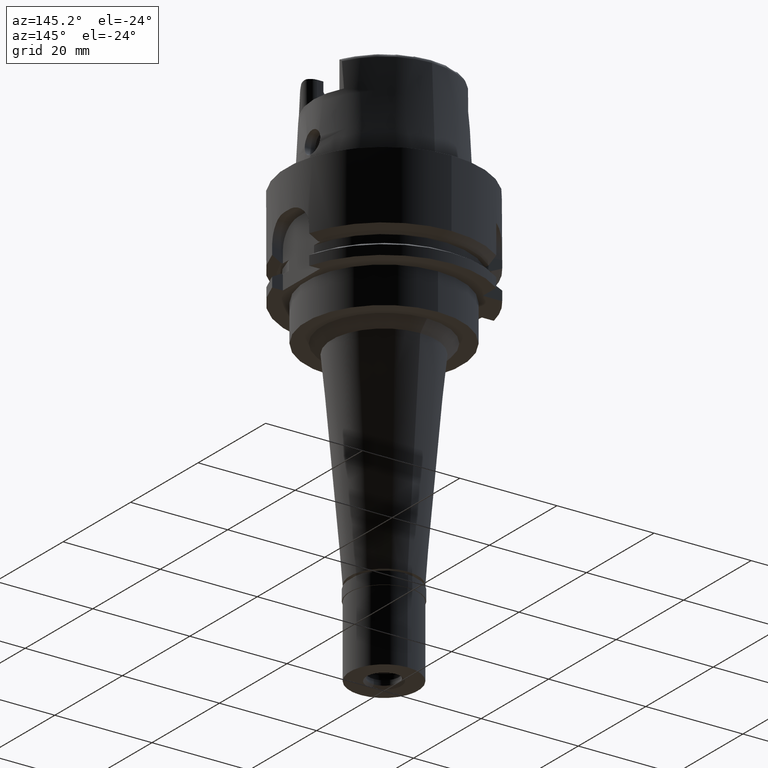
[diagram: clean part render]
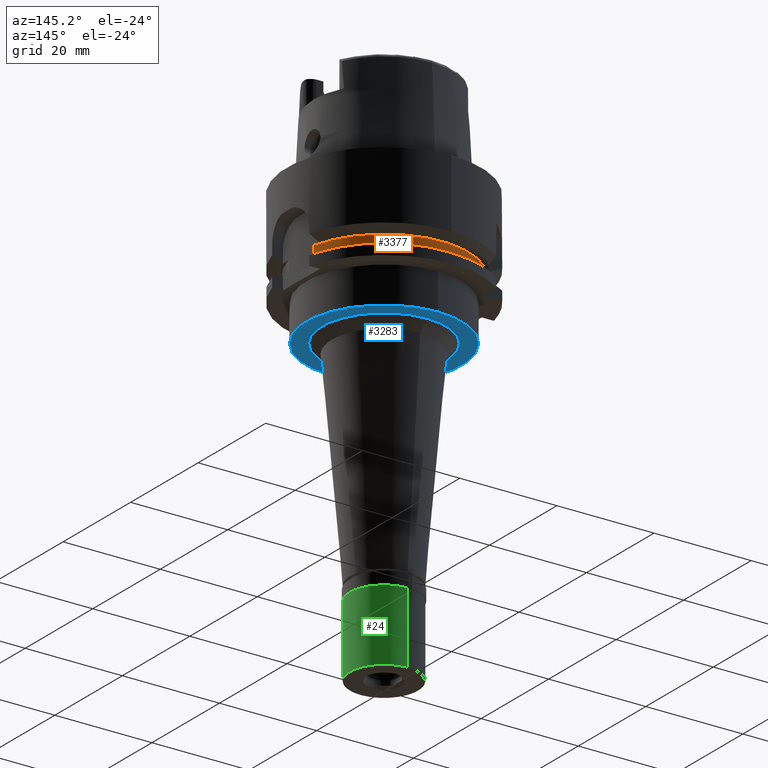
[diagram: same view with three faces highlighted in distinct colors, each labeled with its STEP entity id]
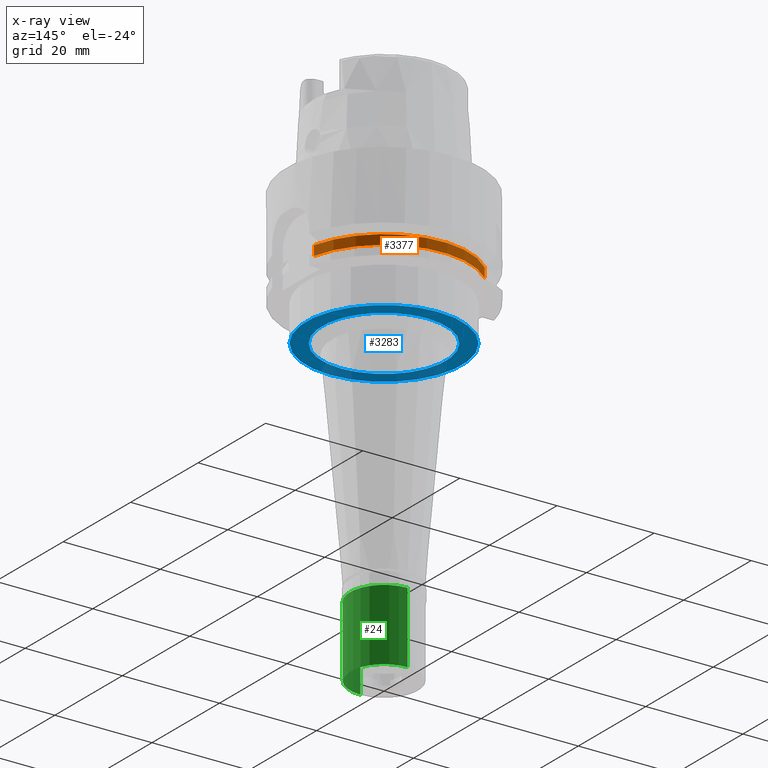
[diagram: x-ray of the same camera — body ghosted, the three highlighted faces saturated]
A machine part, auxiliary view with three faces highlighted in distinct colors.
The next image is the same camera in x-ray (body ghosted, the three faces saturated) — at least one of them is partly hidden behind the body in this view.
Their STEP definitions:

[orange] entity #3377 — the highlighted cylindrical surface (partial cylindrical patch) has radius 17.4 mm, axis along (0, 0, -1).
#98 = DIRECTION ( 'NONE',  ( 0.0000000000000000000, 0.0000000000000000000, 1.000000000000000000 ) ) ;
#125 = DIRECTION ( 'NONE',  ( 0.0000000000000000000, -1.000000000000000000, 0.0000000000000000000 ) ) ;
#402 = VERTEX_POINT ( 'NONE', #5009 ) ;
#511 = CIRCLE ( 'NONE', #5226, 17.40000000000000213 ) ;
#856 = ORIENTED_EDGE ( 'NONE', *, *, #4786, .F. ) ;
#1076 = VERTEX_POINT ( 'NONE', #5210 ) ;
#1244 = DIRECTION ( 'NONE',  ( 0.0000000000000000000, 4.085620730621000160E-14, 1.000000000000000000 ) ) ;
#1368 = FACE_OUTER_BOUND ( 'NONE', #3436, .T. ) ;
#1458 = DIRECTION ( 'NONE',  ( 0.0000000000000000000, 1.000000000000000000, 0.0000000000000000000 ) ) ;
#1605 = CARTESIAN_POINT ( 'NONE',  ( 17.00000000000000000, 3.709447398197999846, -15.00000000000000000 ) ) ;
#1753 = CARTESIAN_POINT ( 'NONE',  ( -12.00000000000000000, 12.59999999999999964, -17.00000000000000000 ) ) ;
#2096 = CARTESIAN_POINT ( 'NONE',  ( 0.0000000000000000000, 1.534482439332000152E-14, -17.00000000000000000 ) ) ;
#2117 = CARTESIAN_POINT ( 'NONE',  ( -12.00000000000000000, 12.59999999999999964, -15.00000000000000000 ) ) ;
#2425 = EDGE_CURVE ( 'NONE', #402, #4418, #5283, .T. ) ;
#2470 = LINE ( 'NONE', #2504, #4696 ) ;
#2504 = CARTESIAN_POINT ( 'NONE',  ( 17.00000000000000000, 3.709447398197999846, -17.00000000000000000 ) ) ;
#2531 = ORIENTED_EDGE ( 'NONE', *, *, #4107, .T. ) ;
#2556 = VERTEX_POINT ( 'NONE', #1753 ) ;
#2762 = DIRECTION ( 'NONE',  ( 0.0000000000000000000, 0.0000000000000000000, -1.000000000000000000 ) ) ;
#2805 = AXIS2_PLACEMENT_3D ( 'NONE', #4047, #4210, #125 ) ;
#3377 = ADVANCED_FACE ( 'NONE', ( #1368 ), #3427, .T. ) ;
#3427 = CYLINDRICAL_SURFACE ( 'NONE', #2805, 17.39999999999999858 ) ;
#3436 = EDGE_LOOP ( 'NONE', ( #4242, #4661, #856, #2531 ) ) ;
#3710 = DIRECTION ( 'NONE',  ( 0.9770114942528667079, 0.2131866320803924297, 0.0000000000000000000 ) ) ;
#4047 = CARTESIAN_POINT ( 'NONE',  ( 0.0000000000000000000, 1.534482439332000152E-14, 25.30000000000000071 ) ) ;
#4092 = EDGE_CURVE ( 'NONE', #402, #2556, #4596, .T. ) ;
#4107 = EDGE_CURVE ( 'NONE', #1076, #2556, #511, .T. ) ;
#4171 = DIRECTION ( 'NONE',  ( 0.0000000000000000000, 0.0000000000000000000, -1.000000000000000000 ) ) ;
#4210 = DIRECTION ( 'NONE',  ( 0.0000000000000000000, 0.0000000000000000000, -1.000000000000000000 ) ) ;
#4242 = ORIENTED_EDGE ( 'NONE', *, *, #4092, .F. ) ;
#4295 = CARTESIAN_POINT ( 'NONE',  ( 0.0000000000000000000, 1.534482439332000152E-14, -15.00000000000000000 ) ) ;
#4338 = AXIS2_PLACEMENT_3D ( 'NONE', #4295, #2762, #1458 ) ;
#4418 = VERTEX_POINT ( 'NONE', #1605 ) ;
#4596 = LINE ( 'NONE', #2117, #4617 ) ;
#4617 = VECTOR ( 'NONE', #4171, 1000.000000000000000 ) ;
#4661 = ORIENTED_EDGE ( 'NONE', *, *, #2425, .T. ) ;
#4696 = VECTOR ( 'NONE', #1244, 1000.000000000000000 ) ;
#4786 = EDGE_CURVE ( 'NONE', #1076, #4418, #2470, .T. ) ;
#5009 = CARTESIAN_POINT ( 'NONE',  ( -12.00000000000000000, 12.59999999999999964, -15.00000000000000000 ) ) ;
#5210 = CARTESIAN_POINT ( 'NONE',  ( 17.00000000000000000, 3.709447398197999846, -17.00000000000000000 ) ) ;
#5226 = AXIS2_PLACEMENT_3D ( 'NONE', #2096, #98, #3710 ) ;
#5283 = CIRCLE ( 'NONE', #4338, 17.39999999999999858 ) ;

[blue] entity #3283 — the highlighted planar face has unit normal (0, 0, -1).
#14 = DIRECTION ( 'NONE',  ( 0.0000000000000000000, 0.0000000000000000000, -1.000000000000000000 ) ) ;
#186 = EDGE_LOOP ( 'NONE', ( #1288, #2433 ) ) ;
#228 = DIRECTION ( 'NONE',  ( 0.0000000000000000000, -1.000000000000000000, 0.0000000000000000000 ) ) ;
#231 = AXIS2_PLACEMENT_3D ( 'NONE', #2877, #14, #4927 ) ;
#369 = DIRECTION ( 'NONE',  ( 0.0000000000000000000, 0.0000000000000000000, -1.000000000000000000 ) ) ;
#406 = AXIS2_PLACEMENT_3D ( 'NONE', #2839, #369, #2889 ) ;
#417 = EDGE_CURVE ( 'NONE', #3099, #4189, #2914, .T. ) ;
#572 = CARTESIAN_POINT ( 'NONE',  ( 0.0000000000000000000, 0.0000000000000000000, -27.50000000000000000 ) ) ;
#604 = AXIS2_PLACEMENT_3D ( 'NONE', #2957, #5029, #2539 ) ;
#634 = DIRECTION ( 'NONE',  ( 0.0000000000000000000, 0.0000000000000000000, -1.000000000000000000 ) ) ;
#694 = CARTESIAN_POINT ( 'NONE',  ( 0.0000000000000000000, -12.74451479890999828, -27.50000000000000000 ) ) ;
#846 = PLANE ( 'NONE',  #231 ) ;
#851 = CIRCLE ( 'NONE', #5131, 16.00000000000000000 ) ;
#1288 = ORIENTED_EDGE ( 'NONE', *, *, #2499, .F. ) ;
#1419 = CARTESIAN_POINT ( 'NONE',  ( 0.0000000000000000000, -16.00000000000000000, -27.50000000000000000 ) ) ;
#1440 = CIRCLE ( 'NONE', #406, 12.74451479890999828 ) ;
#1446 = CARTESIAN_POINT ( 'NONE',  ( 0.0000000000000000000, 12.74451479890999828, -27.50000000000000000 ) ) ;
#1651 = EDGE_LOOP ( 'NONE', ( #2033, #2730 ) ) ;
#2033 = ORIENTED_EDGE ( 'NONE', *, *, #417, .F. ) ;
#2433 = ORIENTED_EDGE ( 'NONE', *, *, #4684, .F. ) ;
#2499 = EDGE_CURVE ( 'NONE', #3708, #5297, #1440, .T. ) ;
#2539 = DIRECTION ( 'NONE',  ( 0.0000000000000000000, 1.000000000000000000, 0.0000000000000000000 ) ) ;
#2730 = ORIENTED_EDGE ( 'NONE', *, *, #4994, .F. ) ;
#2839 = CARTESIAN_POINT ( 'NONE',  ( 0.0000000000000000000, 0.0000000000000000000, -27.50000000000000000 ) ) ;
#2877 = CARTESIAN_POINT ( 'NONE',  ( 0.0000000000000000000, 0.0000000000000000000, -27.50000000000000000 ) ) ;
#2889 = DIRECTION ( 'NONE',  ( 0.0000000000000000000, 1.000000000000000000, 0.0000000000000000000 ) ) ;
#2914 = CIRCLE ( 'NONE', #604, 16.00000000000000000 ) ;
#2957 = CARTESIAN_POINT ( 'NONE',  ( 0.0000000000000000000, 1.534482439332000152E-14, -27.50000000000000000 ) ) ;
#3099 = VERTEX_POINT ( 'NONE', #3977 ) ;
#3283 = ADVANCED_FACE ( 'NONE', ( #3682, #4118 ), #846, .T. ) ;
#3460 = DIRECTION ( 'NONE',  ( 0.0000000000000000000, 0.0000000000000000000, 1.000000000000000000 ) ) ;
#3682 = FACE_OUTER_BOUND ( 'NONE', #1651, .T. ) ;
#3708 = VERTEX_POINT ( 'NONE', #1446 ) ;
#3898 = CARTESIAN_POINT ( 'NONE',  ( 0.0000000000000000000, 1.534482439332000152E-14, -27.50000000000000000 ) ) ;
#3977 = CARTESIAN_POINT ( 'NONE',  ( 0.0000000000000000000, 16.00000000000000000, -27.50000000000000000 ) ) ;
#4118 = FACE_BOUND ( 'NONE', #186, .T. ) ;
#4189 = VERTEX_POINT ( 'NONE', #1419 ) ;
#4192 = CIRCLE ( 'NONE', #5052, 12.74451479890999828 ) ;
#4684 = EDGE_CURVE ( 'NONE', #5297, #3708, #4192, .T. ) ;
#4731 = DIRECTION ( 'NONE',  ( 0.0000000000000000000, -1.000000000000000000, 0.0000000000000000000 ) ) ;
#4927 = DIRECTION ( 'NONE',  ( 0.0000000000000000000, -1.000000000000000000, 0.0000000000000000000 ) ) ;
#4994 = EDGE_CURVE ( 'NONE', #4189, #3099, #851, .T. ) ;
#5029 = DIRECTION ( 'NONE',  ( 0.0000000000000000000, 0.0000000000000000000, 1.000000000000000000 ) ) ;
#5052 = AXIS2_PLACEMENT_3D ( 'NONE', #572, #634, #4731 ) ;
#5131 = AXIS2_PLACEMENT_3D ( 'NONE', #3898, #3460, #228 ) ;
#5297 = VERTEX_POINT ( 'NONE', #694 ) ;

[green] entity #24 — the highlighted cylindrical surface (partial cylindrical patch) has radius 7 mm, axis along (0, 0, 1).
#24 = ADVANCED_FACE ( 'NONE', ( #4991 ), #145, .T. ) ;
#89 = AXIS2_PLACEMENT_3D ( 'NONE', #196, #1954, #1872 ) ;
#145 = CYLINDRICAL_SURFACE ( 'NONE', #89, 7.000000000000000000 ) ;
#196 = CARTESIAN_POINT ( 'NONE',  ( 0.0000000000000000000, 0.0000000000000000000, -17.85000000000000142 ) ) ;
#212 = EDGE_CURVE ( 'NONE', #2359, #3308, #4202, .T. ) ;
#386 = ORIENTED_EDGE ( 'NONE', *, *, #212, .T. ) ;
#557 = VERTEX_POINT ( 'NONE', #1630 ) ;
#752 = ORIENTED_EDGE ( 'NONE', *, *, #1261, .T. ) ;
#766 = DIRECTION ( 'NONE',  ( 0.0000000000000000000, 0.0000000000000000000, -1.000000000000000000 ) ) ;
#1010 = VECTOR ( 'NONE', #766, 1000.000000000000000 ) ;
#1194 = CARTESIAN_POINT ( 'NONE',  ( 0.0000000000000000000, 7.000000000000000000, -2.299999999999999822 ) ) ;
#1261 = EDGE_CURVE ( 'NONE', #557, #4340, #2145, .T. ) ;
#1483 = DIRECTION ( 'NONE',  ( 0.0000000000000000000, 0.0000000000000000000, 1.000000000000000000 ) ) ;
#1630 = CARTESIAN_POINT ( 'NONE',  ( 0.0000000000000000000, -7.000000000000000000, -17.00000000000000000 ) ) ;
#1872 = DIRECTION ( 'NONE',  ( 0.0000000000000000000, 1.000000000000000000, 0.0000000000000000000 ) ) ;
#1954 = DIRECTION ( 'NONE',  ( 0.0000000000000000000, 0.0000000000000000000, 1.000000000000000000 ) ) ;
#2068 = DIRECTION ( 'NONE',  ( 0.0000000000000000000, 0.0000000000000000000, -1.000000000000000000 ) ) ;
#2145 = CIRCLE ( 'NONE', #3424, 7.000000000000000000 ) ;
#2274 = DIRECTION ( 'NONE',  ( 0.0000000000000000000, -1.000000000000000000, 0.0000000000000000000 ) ) ;
#2359 = VERTEX_POINT ( 'NONE', #2929 ) ;
#2561 = VECTOR ( 'NONE', #2674, 1000.000000000000000 ) ;
#2580 = EDGE_LOOP ( 'NONE', ( #386, #4241, #752, #2931 ) ) ;
#2674 = DIRECTION ( 'NONE',  ( 0.0000000000000000000, 0.0000000000000000000, -1.000000000000000000 ) ) ;
#2929 = CARTESIAN_POINT ( 'NONE',  ( 0.0000000000000000000, 7.000000000000000000, -2.299999999999999822 ) ) ;
#2931 = ORIENTED_EDGE ( 'NONE', *, *, #3280, .F. ) ;
#3022 = CARTESIAN_POINT ( 'NONE',  ( 0.0000000000000000000, -7.000000000000000000, -2.299999999999999822 ) ) ;
#3255 = AXIS2_PLACEMENT_3D ( 'NONE', #4485, #2068, #3291 ) ;
#3280 = EDGE_CURVE ( 'NONE', #2359, #4340, #3651, .T. ) ;
#3291 = DIRECTION ( 'NONE',  ( 0.0000000000000000000, 1.000000000000000000, 0.0000000000000000000 ) ) ;
#3308 = VERTEX_POINT ( 'NONE', #3022 ) ;
#3424 = AXIS2_PLACEMENT_3D ( 'NONE', #4498, #1483, #2274 ) ;
#3649 = CARTESIAN_POINT ( 'NONE',  ( 0.0000000000000000000, 7.000000000000000000, -17.00000000000000000 ) ) ;
#3651 = LINE ( 'NONE', #1194, #1010 ) ;
#4202 = CIRCLE ( 'NONE', #3255, 7.000000000000000000 ) ;
#4241 = ORIENTED_EDGE ( 'NONE', *, *, #4960, .T. ) ;
#4316 = LINE ( 'NONE', #4610, #2561 ) ;
#4340 = VERTEX_POINT ( 'NONE', #3649 ) ;
#4485 = CARTESIAN_POINT ( 'NONE',  ( 0.0000000000000000000, 0.0000000000000000000, -2.299999999999999822 ) ) ;
#4498 = CARTESIAN_POINT ( 'NONE',  ( 0.0000000000000000000, 0.0000000000000000000, -17.00000000000000000 ) ) ;
#4610 = CARTESIAN_POINT ( 'NONE',  ( 0.0000000000000000000, -7.000000000000000000, -2.299999999999999822 ) ) ;
#4960 = EDGE_CURVE ( 'NONE', #3308, #557, #4316, .T. ) ;
#4991 = FACE_OUTER_BOUND ( 'NONE', #2580, .T. ) ;